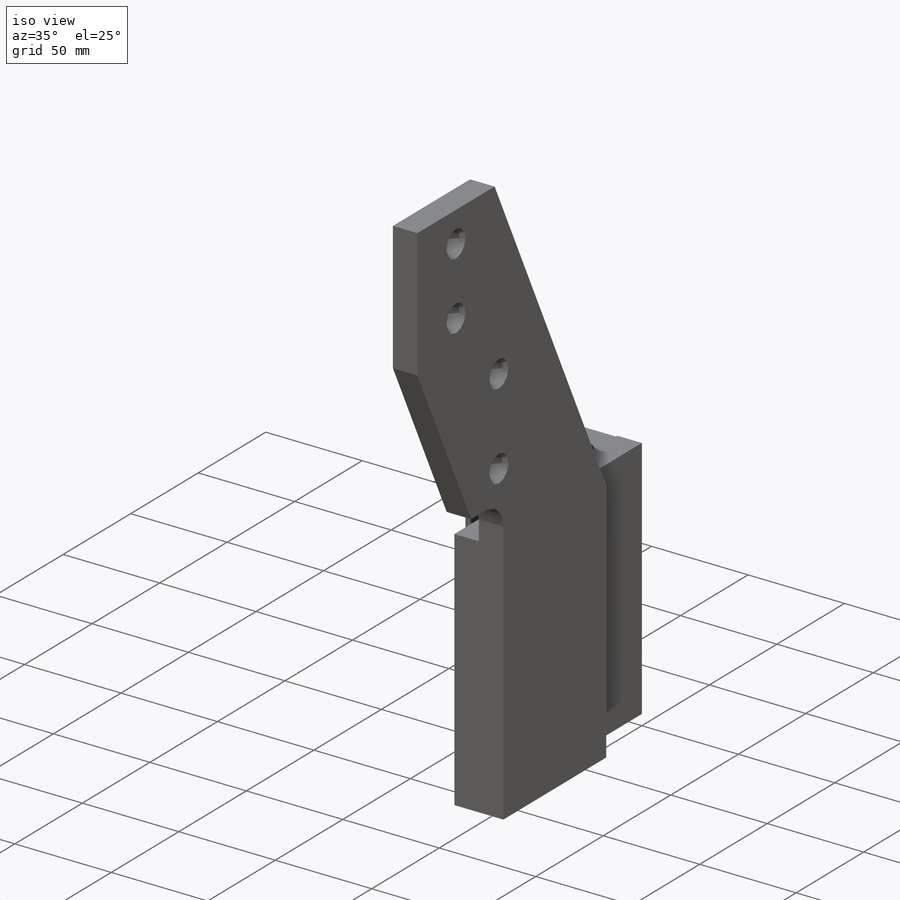
[diagram: iso view]
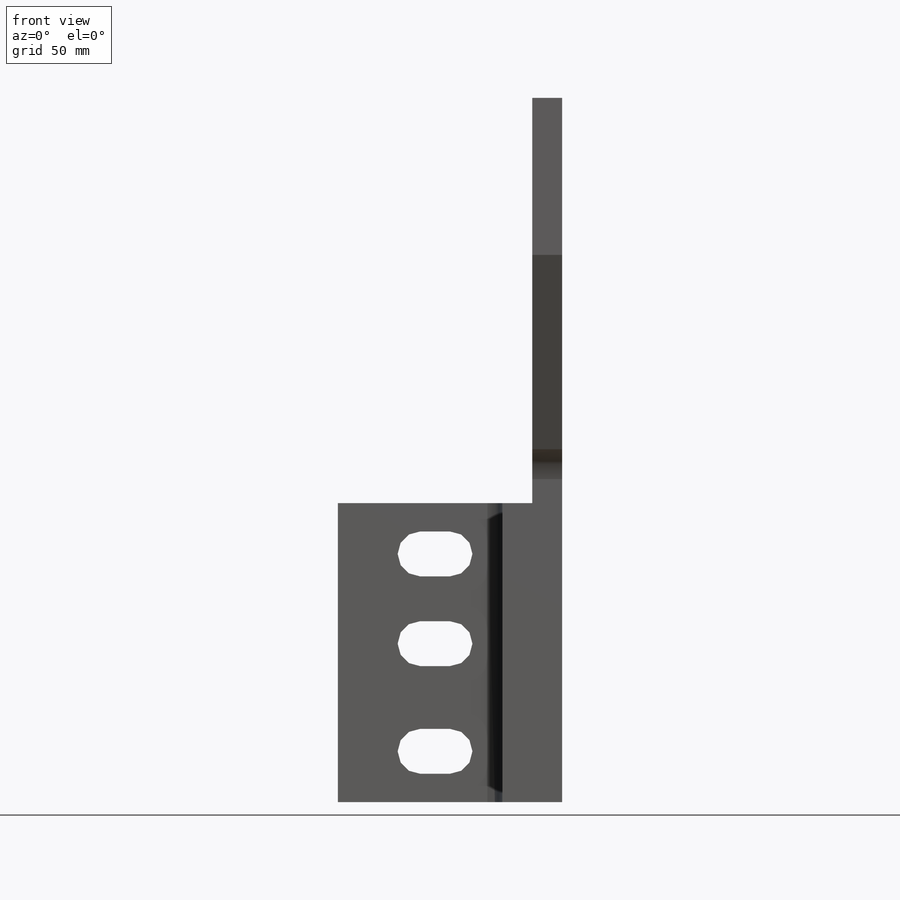
[diagram: front view]
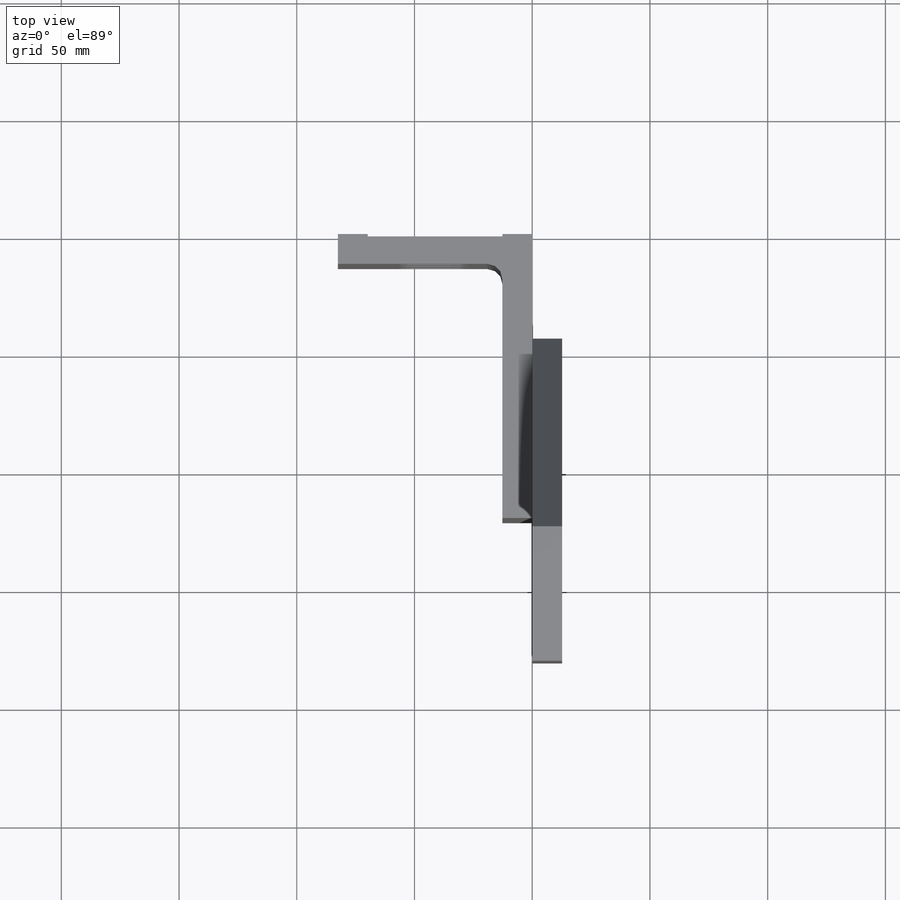
[diagram: top view]
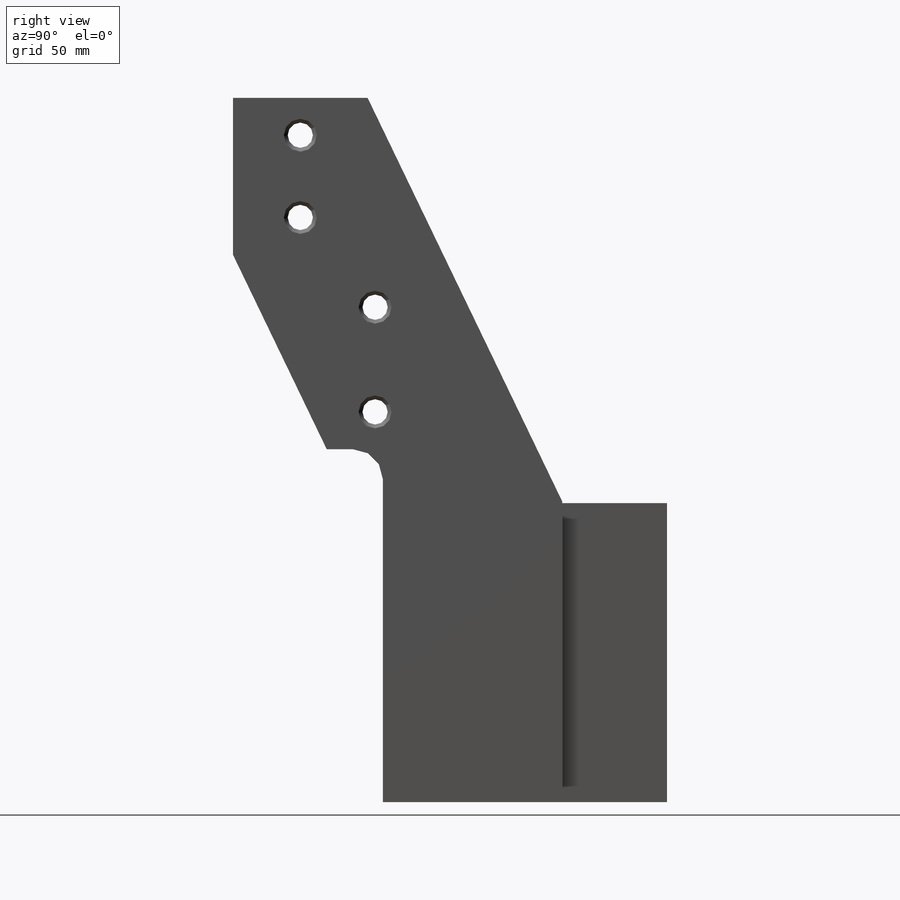
[diagram: right view]
SOLIDWORKS PART (.sldprt)
format: sldprt  version: not decoded by parser v0  size: 1,000,448 bytes
history: native  units: mm
features: sketch x23, thread x8, cut_extrude x6, extrude x5, hole x4, fillet x2, material x1 + 1 further entry (+13 scaffold rows collapsed)
feature tree (63):
  scaffold x13  (default folders/planes/origin — collapsed)
  material  "AISI 1018 Steel, Cold Rolled"
  "Origin"  ID=-1
  sketch  "Sketch1"  dims[D1=127.0mm D2=82.55mm]
  extrude  "Extrude1"  Depth=12.7mm
  sketch  "Sketch2"  dims[D1=12.7mm]
  cut_extrude  "Cut-Extrude1"  Depth=1.016mm
  sketch  "Sketch3"  dims[D1=83.82mm D2=19.05mm D3=12.7mm D4=38.1mm]
  cut_extrude  "Cut-Extrude2"  [1 undecoded]
  sketch  "Sketch4"  dims[D1=12.7mm]
  extrude  "Extrude3"  Depth=120.65mm
  sketch  "Sketch5"  dims[c1.D5=12.7mm c1.D1=76.2mm c1.D2=301.625mm c1.D3=184.277mm c1.D4=149.225mm c2.D2=299.085mm c2.D4=149.225mm]
  extrude  "Extrude4"  Depth=12.7mm
  sketch  "Sketch6"  dims[c1.D1=57.15mm c1.D2=82.55mm c2.D2=25.0deg c3.D2=171.45mm]
  cut_extrude  "Cut-Extrude3"  [1 undecoded]
  sketch  "Sketch7"  dims[D1=66.675mm]
  cut_extrude  "Cut-Extrude4"  [1 undecoded]
  hole  "1/2-13 Tapped Hole1"  Diameter=10.71626mm Depth=12.7mm
  sketch  "Sketch9"  dims[D1=155.702mm D2=142.875mm D3=34.925mm]
  sketch  "Sketch8"  dims[hole-wizard template sketch: 46 standard entries collapsed; hole parameters kept: c15.Thru Tap Drill Dia.=~10.71626mm c15.Thru Tap Drill Depth=12.7mm c15.Near C'Sink Dia.=13.97mm c15.D4=~3.666174mm c15.Near C'Sink Angle=82.0deg c15.Far C'Sink Dia.=13.97mm c15.D6=~9.919017mm c15.Far C'Sink Angle=82.0deg]
  thread  "Hole Thread5"  Diameter=12.7mm  [1 undecoded]
  thread  "Hole Thread6"  Diameter=12.7mm  [1 undecoded]
  hole  "1/2-13 Tapped Hole2"  Diameter=10.71626mm Depth=12.7mm
  sketch  "Sketch11"  dims[D1=123.952mm D2=15.875mm D3=44.45mm]
  sketch  "Sketch10"  dims[hole-wizard template sketch: 46 standard entries collapsed; hole parameters kept: c15.Thru Tap Drill Dia.=~10.71626mm c15.Thru Tap Drill Depth=12.7mm c15.Near C'Sink Dia.=13.97mm c15.D4=~3.666174mm c15.Near C'Sink Angle=82.0deg c15.Far C'Sink Dia.=13.97mm c15.D6=~9.919017mm c15.Far C'Sink Angle=82.0deg]
  thread  "Hole Thread3"  Diameter=12.7mm  [1 undecoded]
  thread  "Hole Thread4"  Diameter=12.7mm  [1 undecoded]
  fillet  "Fillet1"  Radius=6.35mm
  sketch  "Sketch12"  dims[D1=12.7mm]
  extrude  "Extrude5"  Depth=120.65mm
  sketch  "Sketch13"  dims[D5=12.7mm D1=76.2mm D2=184.277mm D3=299.085mm D4=149.225mm]
  extrude  "Extrude6"  Depth=12.7mm
  sketch  "Sketch14"  dims[D1=171.45mm D2=57.15mm]
  cut_extrude  "Cut-Extrude5"  [1 undecoded]
  sketch  "Sketch15"  dims[D1=66.675mm]
  cut_extrude  "Cut-Extrude6"  [1 undecoded]
  hole  "1/2-13 Tapped Hole3"  Diameter=10.71626mm Depth=12.7mm
  sketch  "Sketch17"  dims[D1=155.702mm D2=34.925mm D3=142.875mm]
  sketch  "Sketch16"  dims[hole-wizard template sketch: 46 standard entries collapsed; hole parameters kept: c15.Thru Tap Drill Dia.=~10.71626mm c15.Thru Tap Drill Depth=12.7mm c15.Near C'Sink Dia.=13.97mm c15.D4=~3.666174mm c15.Near C'Sink Angle=82.0deg c15.Far C'Sink Dia.=13.97mm c15.D6=~9.919017mm c15.Far C'Sink Angle=82.0deg]
  thread  "Hole Thread7"  Diameter=12.7mm  [1 undecoded]
  thread  "Hole Thread8"  Diameter=12.7mm  [1 undecoded]
  hole  "1/2-13 Tapped Hole4"  Diameter=10.71626mm Depth=12.7mm
  sketch  "Sketch19"  dims[D1=15.875mm D2=44.45mm D3=123.952mm]
  sketch  "Sketch18"  dims[hole-wizard template sketch: 46 standard entries collapsed; hole parameters kept: c15.Thru Tap Drill Dia.=~10.71626mm c15.Thru Tap Drill Depth=12.7mm c15.Near C'Sink Dia.=13.97mm c15.D4=~3.666174mm c15.Near C'Sink Angle=82.0deg c15.Far C'Sink Dia.=13.97mm c15.D6=~9.919017mm c15.Far C'Sink Angle=82.0deg]
  thread  "Hole Thread9"  Diameter=12.7mm  [1 undecoded]
  thread  "Hole Thread10"  Diameter=12.7mm  [1 undecoded]
  fillet  "Fillet2"  Radius=6.35mm
  sketch  "Sketch20"
  sketch  "Sketch21"
  sketch  "Sketch22"
  sketch  "Sketch23"
decode coverage: 39 of 48 modeling features carry decoded parameters; 1 rows unclassified (native names shown)
note: ~ marks probable driven/reference dimensions
note: 13 parameter values undecoded
summary: no parameter record found for 5 features; Diameter pulled from absorbed wizard sketch
note: suppression state not decoded; provenance and decode notes live in map.json
